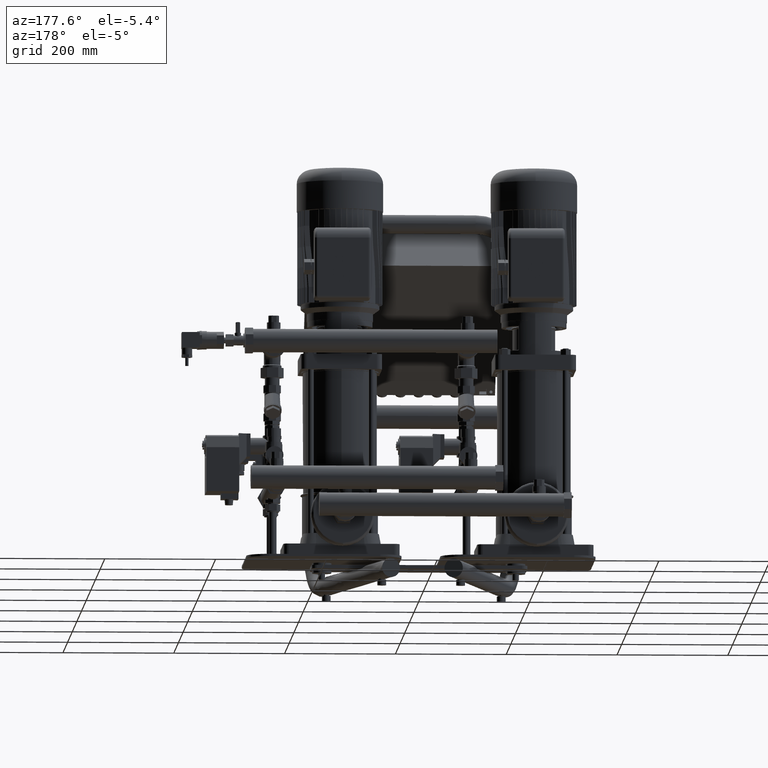
[diagram: clean part render]
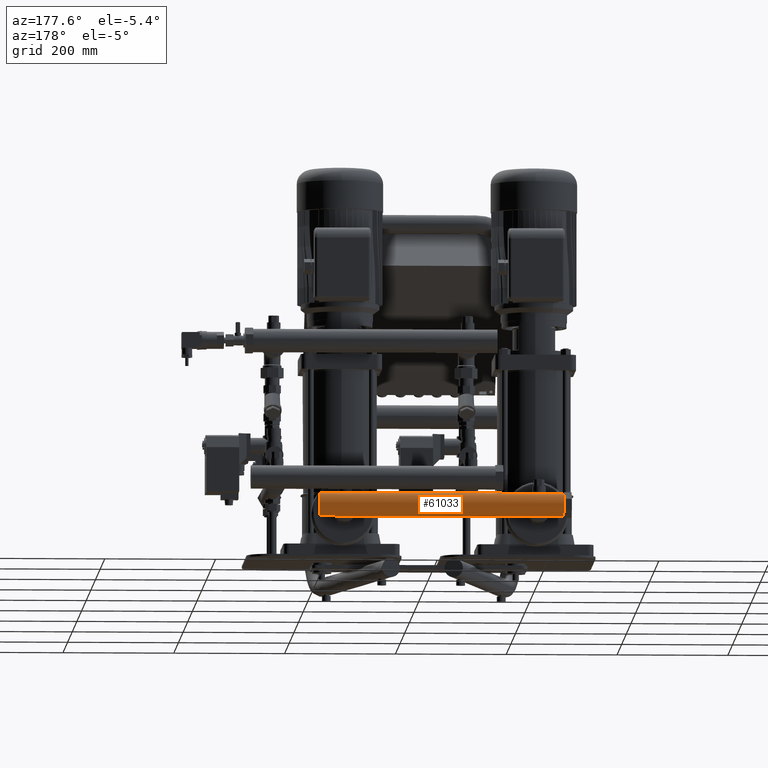
[diagram: same view with one face highlighted and labeled with its STEP entity id]
A machine part, auxiliary view. The second image highlights one B-rep face of the part: STEP entity #61033.
In plain terms, the highlighted face is a freeform B-spline surface patch.
Its self-contained STEP definition (entity closure, byte-faithful):
#60971=CARTESIAN_POINT('',(-248.999999999999970,302.000000000000060,106.800000000000000));
#60972=CARTESIAN_POINT('',(192.000000000000030,302.000000000000060,106.800000000000000));
#60973=CARTESIAN_POINT('',(-248.999999999999970,280.800000000000070,106.800000000000000));
#60974=CARTESIAN_POINT('',(192.0,280.800000000000070,106.800000000000000));
#60975=CARTESIAN_POINT('',(-248.999999999999970,280.800000000000070,128.0));
#60976=CARTESIAN_POINT('',(192.000000000000030,280.800000000000070,128.0));
#60977=CARTESIAN_POINT('',(-248.999999999999970,280.800000000000070,149.199999999999990));
#60978=CARTESIAN_POINT('',(192.0,280.800000000000070,149.199999999999990));
#60979=CARTESIAN_POINT('',(-248.999999999999970,302.000000000000060,149.199999999999990));
#60980=CARTESIAN_POINT('',(192.000000000000030,302.000000000000060,149.199999999999990));
#60981=CARTESIAN_POINT('',(-248.999999999999970,323.200000000000050,149.199999999999990));
#60982=CARTESIAN_POINT('',(192.0,323.200000000000050,149.199999999999990));
#60983=CARTESIAN_POINT('',(-248.999999999999970,323.200000000000050,128.0));
#60984=CARTESIAN_POINT('',(192.000000000000030,323.200000000000050,128.0));
#60985=CARTESIAN_POINT('',(-248.999999999999970,323.200000000000050,106.800000000000000));
#60986=CARTESIAN_POINT('',(192.0,323.200000000000050,106.800000000000000));
#60987=CARTESIAN_POINT('',(-248.999999999999970,302.000000000000060,106.800000000000000));
#60988=CARTESIAN_POINT('',(192.000000000000030,302.000000000000060,106.800000000000000));
#60996=(BOUNDED_SURFACE()B_SPLINE_SURFACE(1,2,((#60971,#60973,#60975,#60977,#60979,#60981,#60983,#60985,#60987),(#60972,#60974,#60976,#60978,#60980,#60982,#60984,#60986,#60988)),.UNSPECIFIED.,.F.,.T.,.U.)B_SPLINE_SURFACE_WITH_KNOTS((2,2),(3,2,2,2,3),(0.0,20.801886792452827),(0.0,33.300882128051811,66.601764256103621,99.902646384155432,133.203528512207240),.UNSPECIFIED.)GEOMETRIC_REPRESENTATION_ITEM()RATIONAL_B_SPLINE_SURFACE(((1.0,0.707106781186548,1.0,0.707106781186548,1.0,0.707106781186548,1.0,0.707106781186548,1.0),(1.0,0.707106781186548,1.0,0.707106781186548,1.0,0.707106781186548,1.0,0.707106781186548,1.0)))REPRESENTATION_ITEM('')SURFACE());
#60997=CARTESIAN_POINT('',(192.000000000000030,302.000000000000060,149.199999999999990));
#60998=VERTEX_POINT('',#60997);
#60999=CARTESIAN_POINT('',(-248.999999999999970,302.000000000000060,149.199999999999990));
#61000=VERTEX_POINT('',#60999);
#61001=CARTESIAN_POINT('',(192.000000000000030,302.000000000000060,149.199999999999990));
#61002=DIRECTION('',(-1.0,0.0,0.0));
#61003=VECTOR('',#61002,441.0);
#61004=LINE('',#61001,#61003);
#61005=EDGE_CURVE('',#60998,#61000,#61004,.T.);
#61006=ORIENTED_EDGE('',*,*,#61005,.F.);
#61007=CARTESIAN_POINT('',(192.000000000000030,302.000000000000060,106.800000000000010));
#61008=VERTEX_POINT('',#61007);
#61009=CARTESIAN_POINT('',(192.000000000000030,302.000000000000060,128.0));
#61010=DIRECTION('',(1.0,0.0,0.0));
#61011=DIRECTION('',(0.0,0.0,1.0));
#61012=AXIS2_PLACEMENT_3D('',#61009,#61010,#61011);
#61013=CIRCLE('',#61012,21.200000000000003);
#61014=EDGE_CURVE('',#61008,#60998,#61013,.T.);
#61015=ORIENTED_EDGE('',*,*,#61014,.F.);
#61016=CARTESIAN_POINT('',(-248.999999999999970,302.000000000000060,106.800000000000010));
#61017=VERTEX_POINT('',#61016);
#61018=CARTESIAN_POINT('',(192.000000000000030,302.000000000000060,106.800000000000010));
#61019=DIRECTION('',(-1.0,0.0,0.0));
#61020=VECTOR('',#61019,441.0);
#61021=LINE('',#61018,#61020);
#61022=EDGE_CURVE('',#61008,#61017,#61021,.T.);
#61023=ORIENTED_EDGE('',*,*,#61022,.T.);
#61024=CARTESIAN_POINT('',(-248.999999999999970,302.000000000000060,128.0));
#61025=DIRECTION('',(1.0,0.0,0.0));
#61026=DIRECTION('',(0.0,0.0,1.0));
#61027=AXIS2_PLACEMENT_3D('',#61024,#61025,#61026);
#61028=CIRCLE('',#61027,21.200000000000003);
#61029=EDGE_CURVE('',#61017,#61000,#61028,.T.);
#61030=ORIENTED_EDGE('',*,*,#61029,.T.);
#61031=EDGE_LOOP('',(#61006,#61015,#61023,#61030));
#61032=FACE_OUTER_BOUND('',#61031,.T.);
#61033=ADVANCED_FACE('',(#61032),#60996,.T.);